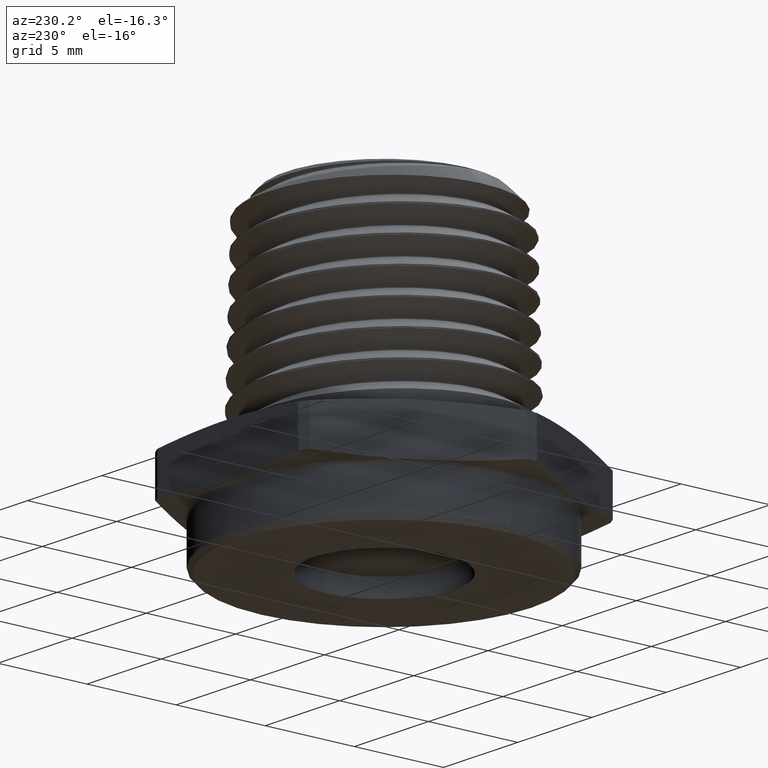
[diagram: clean part render]
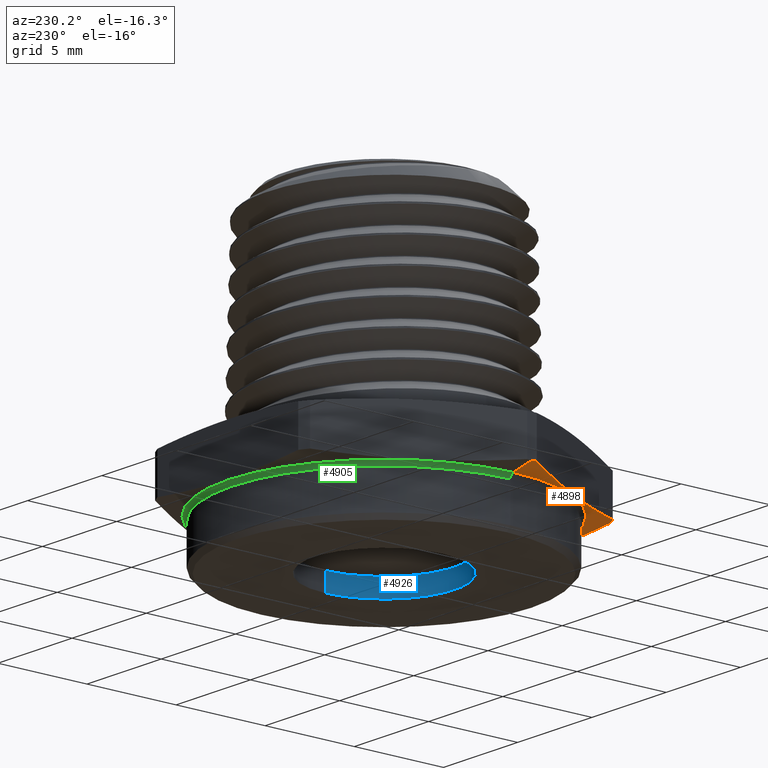
[diagram: same view with three faces highlighted in distinct colors, each labeled with its STEP entity id]
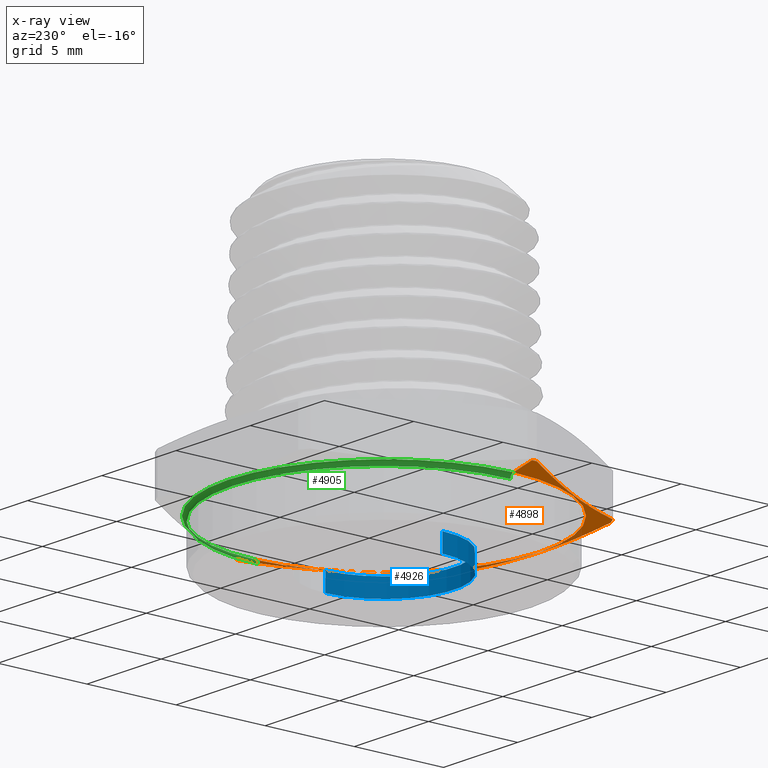
[diagram: x-ray of the same camera — body ghosted, the three highlighted faces saturated]
A machine part, auxiliary view with three faces highlighted in distinct colors.
The next image is the same camera in x-ray (body ghosted, the three faces saturated) — at least one of them is partly hidden behind the body in this view.
Their STEP definitions:

[orange] entity #4898 — the highlighted conical surface has half-angle 78 deg.
#690 = AXIS2_PLACEMENT_3D ( 'NONE', #3116, #3117, #3118 ) ;
#692 = AXIS2_PLACEMENT_3D ( 'NONE', #3128, #3129, #3130 ) ;
#695 = AXIS2_PLACEMENT_3D ( 'NONE', #3147, #3148, #3149 ) ;
#705 = AXIS2_PLACEMENT_3D ( 'NONE', #4397, #4398, #4399 ) ;
#710 = AXIS2_PLACEMENT_3D ( 'NONE', #4419, #4420, #4421 ) ;
#757 = AXIS2_PLACEMENT_3D ( 'NONE', #3494, #3495, #3493 ) ;
#817 = ORIENTED_EDGE ( 'NONE', *, *, #1729, .T. ) ;
#858 = ORIENTED_EDGE ( 'NONE', *, *, #1799, .T. ) ;
#875 = ORIENTED_EDGE ( 'NONE', *, *, #1767, .F. ) ;
#901 = ORIENTED_EDGE ( 'NONE', *, *, #1770, .T. ) ;
#1640 = B_SPLINE_CURVE_WITH_KNOTS ( 'NONE', 3,
 ( #3175, #3169, #3171, #3177, #3178 ),
 .UNSPECIFIED., .F., .F.,
 ( 4, 1, 4 ),
 ( 1.975061656153983600E-006, 0.004749162338215752600, 0.009496349614775351600 ),
 .UNSPECIFIED. ) ;
#1641 = B_SPLINE_CURVE_WITH_KNOTS ( 'NONE', 3,
 ( #3180, #3174, #3176, #3182, #3183, #3184, #3185, #3186 ),
 .UNSPECIFIED., .F., .F.,
 ( 4, 2, 2, 4 ),
 ( 0.008707379266003482600, 0.01109029592398133200, 0.01347321258195918400, 0.01823904589791488400 ),
 .UNSPECIFIED. ) ;
#1642 = B_SPLINE_CURVE_WITH_KNOTS ( 'NONE', 3,
 ( #3187, #3179, #3181, #3188, #3189 ),
 .UNSPECIFIED., .F., .F.,
 ( 4, 1, 4 ),
 ( 1.975061655748048500E-006, 0.004749162338215338900, 0.009496349614774930000 ),
 .UNSPECIFIED. ) ;
#1717 = EDGE_CURVE ( 'NONE', #2507, #2519, #2606, .T. ) ;
#1722 = EDGE_CURVE ( 'NONE', #2539, #2510, #2612, .T. ) ;
#1729 = EDGE_CURVE ( 'NONE', #1827, #2515, #2625, .T. ) ;
#1737 = EDGE_CURVE ( 'NONE', #2539, #2515, #1640, .T. ) ;
#1738 = EDGE_CURVE ( 'NONE', #2507, #2510, #1641, .T. ) ;
#1739 = EDGE_CURVE ( 'NONE', #1847, #2519, #1642, .T. ) ;
#1761 = EDGE_CURVE ( 'NONE', #1847, #1873, #2662, .T. ) ;
#1767 = EDGE_CURVE ( 'NONE', #1855, #1873, #2670, .T. ) ;
#1770 = EDGE_CURVE ( 'NONE', #1855, #1836, #2669, .T. ) ;
#1799 = EDGE_CURVE ( 'NONE', #1836, #1827, #2707, .T. ) ;
#1827 = VERTEX_POINT ( 'NONE', #4506 ) ;
#1836 = VERTEX_POINT ( 'NONE', #4531 ) ;
#1847 = VERTEX_POINT ( 'NONE', #4541 ) ;
#1855 = VERTEX_POINT ( 'NONE', #4549 ) ;
#1873 = VERTEX_POINT ( 'NONE', #4567 ) ;
#2507 = VERTEX_POINT ( 'NONE', #4585 ) ;
#2510 = VERTEX_POINT ( 'NONE', #4588 ) ;
#2515 = VERTEX_POINT ( 'NONE', #4593 ) ;
#2519 = VERTEX_POINT ( 'NONE', #3366 ) ;
#2539 = VERTEX_POINT ( 'NONE', #3385 ) ;
#2606 = CIRCLE ( 'NONE', #690, 0.3923716857408416900 ) ;
#2612 = CIRCLE ( 'NONE', #692, 0.3923716857408416900 ) ;
#2625 = CIRCLE ( 'NONE', #695, 0.3923716857408416900 ) ;
#2662 = CIRCLE ( 'NONE', #705, 0.3923716857408416900 ) ;
#2669 = CIRCLE ( 'NONE', #710, 0.3429208830918226700 ) ;
#2670 = LINE ( 'NONE', #4405, #2671 ) ;
#2671 = VECTOR ( 'NONE', #4407, 39.37007874015748100 ) ;
#2707 = LINE ( 'NONE', #4505, #2709 ) ;
#2709 = VECTOR ( 'NONE', #4501, 39.37007874015748100 ) ;
#3116 = CARTESIAN_POINT ( 'NONE',  ( 1.493423492798156200E-018, 0.0000000000000000000, 0.01219472825828588400 ) ) ;
#3117 = DIRECTION ( 'NONE',  ( -1.224646799147351200E-016, -0.0000000000000000000, -1.000000000000000000 ) ) ;
#3118 = DIRECTION ( 'NONE',  ( -1.000000000000000000, 0.0000000000000000000, 1.251055960969030800E-016 ) ) ;
#3128 = CARTESIAN_POINT ( 'NONE',  ( 1.493423492798156200E-018, 0.0000000000000000000, 0.01219472825828588400 ) ) ;
#3129 = DIRECTION ( 'NONE',  ( -1.224646799147351200E-016, -0.0000000000000000000, -1.000000000000000000 ) ) ;
#3130 = DIRECTION ( 'NONE',  ( -1.000000000000000000, 0.0000000000000000000, 1.251055960969030800E-016 ) ) ;
#3147 = CARTESIAN_POINT ( 'NONE',  ( 1.493423492798156200E-018, 0.0000000000000000000, 0.01219472825828588400 ) ) ;
#3148 = DIRECTION ( 'NONE',  ( -1.224646799147351200E-016, -0.0000000000000000000, -1.000000000000000000 ) ) ;
#3149 = DIRECTION ( 'NONE',  ( -1.000000000000000000, 0.0000000000000000000, 1.251055960969030800E-016 ) ) ;
#3169 = CARTESIAN_POINT ( 'NONE',  ( 0.2364797186814894000, -0.2804051122840648900, 0.005887175410780928900 ) ) ;
#3171 = CARTESIAN_POINT ( 'NONE',  ( 0.2987787643056311600, -0.1724999999999999000, -0.001636044177380915200 ) ) ;
#3174 = CARTESIAN_POINT ( 'NONE',  ( -0.1557582215120213700, -0.3449999999999998100, 0.009042025800615860500 ) ) ;
#3175 = CARTESIAN_POINT ( 'NONE',  ( 0.2053301958694185000, -0.3343576684260973200, 0.01219472825828593400 ) ) ;
#3176 = CARTESIAN_POINT ( 'NONE',  ( -0.1245142246070182200, -0.3449999999999998600, 0.006492246311963062300 ) ) ;
#3177 = CARTESIAN_POINT ( 'NONE',  ( 0.3610778099297729000, -0.06459488771593491200, 0.005887175410780907300 ) ) ;
#3178 = CARTESIAN_POINT ( 'NONE',  ( 0.3922273327418436800, -0.01064233157390236500, 0.01219472825828583600 ) ) ;
#3179 = CARTESIAN_POINT ( 'NONE',  ( -0.3610778099297727300, -0.06459488771593521700, 0.005887175410781002700 ) ) ;
#3180 = CARTESIAN_POINT ( 'NONE',  ( -0.1868971368724250700, -0.3449999999999998100, 0.01219472825828593400 ) ) ;
#3181 = CARTESIAN_POINT ( 'NONE',  ( -0.2987787643056311600, -0.1725000000000000100, -0.001636044177380834100 ) ) ;
#3182 = CARTESIAN_POINT ( 'NONE',  ( -0.06212850595196967700, -0.3449999999999998100, 0.003029762632639263100 ) ) ;
#3183 = CARTESIAN_POINT ( 'NONE',  ( -0.03095414757252229500, -0.3449999999999998100, 0.002121744499833164100 ) ) ;
#3184 = CARTESIAN_POINT ( 'NONE',  ( 0.06250744931464369300, -0.3449999999999998600, 0.002133244712638485800 ) ) ;
#3185 = CARTESIAN_POINT ( 'NONE',  ( 0.1247306861591275900, -0.3449999999999998100, 0.005900600165511630200 ) ) ;
#3186 = CARTESIAN_POINT ( 'NONE',  ( 0.1868971368724250700, -0.3449999999999998100, 0.01219472825828586200 ) ) ;
#3187 = CARTESIAN_POINT ( 'NONE',  ( -0.3922273327418436800, -0.01064233157390284000, 0.01219472825828593400 ) ) ;
#3188 = CARTESIAN_POINT ( 'NONE',  ( -0.2364797186814895600, -0.2804051122840648900, 0.005887175410781007000 ) ) ;
#3189 = CARTESIAN_POINT ( 'NONE',  ( -0.2053301958694187800, -0.3343576684260972100, 0.01219472825828591000 ) ) ;
#3366 = CARTESIAN_POINT ( 'NONE',  ( -0.2053301958694187800, -0.3343576684260972100, 0.01219472825828591000 ) ) ;
#3385 = CARTESIAN_POINT ( 'NONE',  ( 0.2053301958694185000, -0.3343576684260973200, 0.01219472825828593400 ) ) ;
#3493 = DIRECTION ( 'NONE',  ( 1.000000000000000000, 0.0000000000000000000, -1.251055960969030800E-016 ) ) ;
#3494 = CARTESIAN_POINT ( 'NONE',  ( 1.493423492798156200E-018, 0.0000000000000000000, 0.01219472825828588400 ) ) ;
#3495 = DIRECTION ( 'NONE',  ( 1.224646799147351200E-016, 0.0000000000000000000, 1.000000000000000000 ) ) ;
#4397 = CARTESIAN_POINT ( 'NONE',  ( 1.493423492798156200E-018, 0.0000000000000000000, 0.01219472825828588400 ) ) ;
#4398 = DIRECTION ( 'NONE',  ( -1.224646799147351200E-016, -0.0000000000000000000, -1.000000000000000000 ) ) ;
#4399 = DIRECTION ( 'NONE',  ( -1.000000000000000000, 0.0000000000000000000, 1.251055960969030800E-016 ) ) ;
#4405 = CARTESIAN_POINT ( 'NONE',  ( -0.3923716857408416900, 4.805167290185729500E-017, 0.01219472825828593400 ) ) ;
#4407 = DIRECTION ( 'NONE',  ( -0.9781476007338069100, 1.197885328332319900E-016, 0.2079116908177530700 ) ) ;
#4419 = CARTESIAN_POINT ( 'NONE',  ( 3.538065823107614100E-018, 0.0000000000000000000, 0.001683635675387737400 ) ) ;
#4420 = DIRECTION ( 'NONE',  ( 1.224646799147351200E-016, 0.0000000000000000000, 1.000000000000000000 ) ) ;
#4421 = DIRECTION ( 'NONE',  ( 1.000000000000000000, 0.0000000000000000000, -1.221412310369413900E-016 ) ) ;
#4501 = DIRECTION ( 'NONE',  ( 0.9781476007338069100, 0.0000000000000000000, 0.2079116908177528500 ) ) ;
#4505 = CARTESIAN_POINT ( 'NONE',  ( 0.3923716857408416900, 0.0000000000000000000, 0.01219472825828583600 ) ) ;
#4506 = CARTESIAN_POINT ( 'NONE',  ( 0.3923716857408416900, 0.0000000000000000000, 0.01219472825828583600 ) ) ;
#4531 = CARTESIAN_POINT ( 'NONE',  ( 0.3429208830918218400, 0.0000000000000000000, 0.001683635675387694700 ) ) ;
#4541 = CARTESIAN_POINT ( 'NONE',  ( -0.3922273327418436800, -0.01064233157390284000, 0.01219472825828593400 ) ) ;
#4549 = CARTESIAN_POINT ( 'NONE',  ( -0.3429208830918218400, 4.199569618391833300E-017, 0.001683635675387782300 ) ) ;
#4567 = CARTESIAN_POINT ( 'NONE',  ( -0.3923716857408416900, 0.0000000000000000000, 0.01219472825828593400 ) ) ;
#4585 = CARTESIAN_POINT ( 'NONE',  ( -0.1868971368724250700, -0.3449999999999998100, 0.01219472825828593400 ) ) ;
#4588 = CARTESIAN_POINT ( 'NONE',  ( 0.1868971368724250700, -0.3449999999999998100, 0.01219472825828586200 ) ) ;
#4593 = CARTESIAN_POINT ( 'NONE',  ( 0.3922273327418436800, -0.01064233157390236500, 0.01219472825828583600 ) ) ;
#4613 = EDGE_LOOP ( 'NONE', ( #875, #901, #858, #817, #5022, #4942, #4997, #4992, #4958, #4995 ) ) ;
#4898 = ADVANCED_FACE ( 'NONE', ( #5225 ), #5232, .T. ) ;
#4942 = ORIENTED_EDGE ( 'NONE', *, *, #1722, .T. ) ;
#4958 = ORIENTED_EDGE ( 'NONE', *, *, #1739, .F. ) ;
#4992 = ORIENTED_EDGE ( 'NONE', *, *, #1717, .T. ) ;
#4995 = ORIENTED_EDGE ( 'NONE', *, *, #1761, .T. ) ;
#4997 = ORIENTED_EDGE ( 'NONE', *, *, #1738, .F. ) ;
#5022 = ORIENTED_EDGE ( 'NONE', *, *, #1737, .F. ) ;
#5225 = FACE_OUTER_BOUND ( 'NONE', #4613, .T. ) ;
#5232 = CONICAL_SURFACE ( 'NONE', #757, 0.3923716857408416900, 1.361356816555583600 ) ;

[blue] entity #4926 — the highlighted cylindrical surface (partial cylindrical patch) has radius 3.937 mm, axis along (-0, -0, -1).
#718 = AXIS2_PLACEMENT_3D ( 'NONE', #4450, #4451, #4452 ) ;
#720 = AXIS2_PLACEMENT_3D ( 'NONE', #4461, #4462, #4463 ) ;
#805 = AXIS2_PLACEMENT_3D ( 'NONE', #2462, #2463, #2460 ) ;
#1779 = EDGE_CURVE ( 'NONE', #1860, #1841, #2683, .T. ) ;
#1780 = EDGE_CURVE ( 'NONE', #1838, #1841, #2684, .T. ) ;
#1783 = EDGE_CURVE ( 'NONE', #1846, #1838, #2689, .T. ) ;
#1785 = EDGE_CURVE ( 'NONE', #1846, #1860, #2693, .T. ) ;
#1838 = VERTEX_POINT ( 'NONE', #4532 ) ;
#1841 = VERTEX_POINT ( 'NONE', #4535 ) ;
#1846 = VERTEX_POINT ( 'NONE', #4540 ) ;
#1860 = VERTEX_POINT ( 'NONE', #4554 ) ;
#2023 = EDGE_LOOP ( 'NONE', ( #5035, #4935, #4990, #5010 ) ) ;
#2460 = DIRECTION ( 'NONE',  ( -1.000000000000000000, 0.0000000000000000000, 1.101551610348493600E-016 ) ) ;
#2462 = CARTESIAN_POINT ( 'NONE',  ( -3.414809992080329000E-017, 0.0000000000000000000, -0.1000000000000000100 ) ) ;
#2463 = DIRECTION ( 'NONE',  ( -1.224646799147353200E-016, -0.0000000000000000000, -1.000000000000000000 ) ) ;
#2683 = LINE ( 'NONE', #4443, #2685 ) ;
#2684 = CIRCLE ( 'NONE', #718, 0.1549999999999999400 ) ;
#2685 = VECTOR ( 'NONE', #4439, 39.37007874015748100 ) ;
#2689 = LINE ( 'NONE', #4454, #2692 ) ;
#2692 = VECTOR ( 'NONE', #4455, 39.37007874015748100 ) ;
#2693 = CIRCLE ( 'NONE', #720, 0.1549999999999999400 ) ;
#4439 = DIRECTION ( 'NONE',  ( -1.224646799147353200E-016, -0.0000000000000000000, -1.000000000000000000 ) ) ;
#4443 = CARTESIAN_POINT ( 'NONE',  ( -0.1550000000000000000, 0.0000000000000000000, -0.09999999999999999200 ) ) ;
#4450 = CARTESIAN_POINT ( 'NONE',  ( -3.414809992080329000E-017, 0.0000000000000000000, -0.1000000000000000200 ) ) ;
#4451 = DIRECTION ( 'NONE',  ( -1.224646799147353200E-016, -0.0000000000000000000, -1.000000000000000000 ) ) ;
#4452 = DIRECTION ( 'NONE',  ( -1.000000000000000000, 0.0000000000000000000, 1.101551610348493600E-016 ) ) ;
#4454 = CARTESIAN_POINT ( 'NONE',  ( 0.1549999999999999200, 1.898202538678397000E-017, -0.1000000000000000200 ) ) ;
#4455 = DIRECTION ( 'NONE',  ( -1.224646799147353200E-016, -0.0000000000000000000, -1.000000000000000000 ) ) ;
#4461 = CARTESIAN_POINT ( 'NONE',  ( -2.924951272421388200E-017, 0.0000000000000000000, -0.06000000000000003200 ) ) ;
#4462 = DIRECTION ( 'NONE',  ( -1.224646799147353200E-016, -0.0000000000000000000, -1.000000000000000000 ) ) ;
#4463 = DIRECTION ( 'NONE',  ( -1.000000000000000000, 0.0000000000000000000, 1.101551610348493600E-016 ) ) ;
#4532 = CARTESIAN_POINT ( 'NONE',  ( 0.1549999999999999200, 1.898202538678397000E-017, -0.1000000000000000500 ) ) ;
#4535 = CARTESIAN_POINT ( 'NONE',  ( -0.1550000000000000000, 0.0000000000000000000, -0.1000000000000000100 ) ) ;
#4540 = CARTESIAN_POINT ( 'NONE',  ( 0.1549999999999999200, 1.898202538678397000E-017, -0.06000000000000005300 ) ) ;
#4554 = CARTESIAN_POINT ( 'NONE',  ( -0.1550000000000000000, 0.0000000000000000000, -0.06000000000000001900 ) ) ;
#4926 = ADVANCED_FACE ( 'NONE', ( #5279 ), #5285, .F. ) ;
#4935 = ORIENTED_EDGE ( 'NONE', *, *, #1783, .T. ) ;
#4990 = ORIENTED_EDGE ( 'NONE', *, *, #1780, .T. ) ;
#5010 = ORIENTED_EDGE ( 'NONE', *, *, #1779, .F. ) ;
#5035 = ORIENTED_EDGE ( 'NONE', *, *, #1785, .F. ) ;
#5279 = FACE_OUTER_BOUND ( 'NONE', #2023, .T. ) ;
#5285 = CYLINDRICAL_SURFACE ( 'NONE', #805, 0.1549999999999999400 ) ;

[green] entity #4905 — the highlighted toroidal blend (fillet) surface has major radius 8.763 mm and minor (blend) radius 0.254 mm.
#704 = AXIS2_PLACEMENT_3D ( 'NONE', #4392, #4393, #4394 ) ;
#708 = AXIS2_PLACEMENT_3D ( 'NONE', #4413, #4414, #4415 ) ;
#709 = AXIS2_PLACEMENT_3D ( 'NONE', #4416, #4417, #4418 ) ;
#711 = AXIS2_PLACEMENT_3D ( 'NONE', #4422, #4423, #4424 ) ;
#771 = AXIS2_PLACEMENT_3D ( 'NONE', #3518, #3519, #3523 ) ;
#1760 = EDGE_CURVE ( 'NONE', #1837, #1828, #2654, .T. ) ;
#1768 = EDGE_CURVE ( 'NONE', #1836, #1855, #2667, .T. ) ;
#1769 = EDGE_CURVE ( 'NONE', #1837, #1855, #2672, .T. ) ;
#1771 = EDGE_CURVE ( 'NONE', #1828, #1836, #2674, .T. ) ;
#1828 = VERTEX_POINT ( 'NONE', #4525 ) ;
#1836 = VERTEX_POINT ( 'NONE', #4531 ) ;
#1837 = VERTEX_POINT ( 'NONE', #4519 ) ;
#1855 = VERTEX_POINT ( 'NONE', #4549 ) ;
#2036 = EDGE_LOOP ( 'NONE', ( #4986, #5006, #5031, #5021 ) ) ;
#2654 = CIRCLE ( 'NONE', #704, 0.3350000000000000200 ) ;
#2667 = CIRCLE ( 'NONE', #708, 0.3429208830918226700 ) ;
#2672 = CIRCLE ( 'NONE', #709, 0.01000000000000000000 ) ;
#2674 = CIRCLE ( 'NONE', #711, 0.01000000000000003000 ) ;
#3518 = CARTESIAN_POINT ( 'NONE',  ( 2.939123158941460500E-018, 0.0000000000000000000, -0.008097840331950210600 ) ) ;
#3519 = DIRECTION ( 'NONE',  ( -6.123233995736756200E-017, -0.0000000000000000000, -1.000000000000000000 ) ) ;
#3523 = DIRECTION ( 'NONE',  ( -1.000000000000000000, 0.0000000000000000000, 6.123233995736756200E-017 ) ) ;
#4392 = CARTESIAN_POINT ( 'NONE',  ( 0.0000000000000000000, 0.0000000000000000000, -0.008097840331950198500 ) ) ;
#4393 = DIRECTION ( 'NONE',  ( -6.123233995736756200E-017, -0.0000000000000000000, -1.000000000000000000 ) ) ;
#4394 = DIRECTION ( 'NONE',  ( -1.000000000000000000, 0.0000000000000000000, 6.052368456112523200E-017 ) ) ;
#4413 = CARTESIAN_POINT ( 'NONE',  ( 3.538065823107614100E-018, 0.0000000000000000000, 0.001683635675387737400 ) ) ;
#4414 = DIRECTION ( 'NONE',  ( 1.224646799147351200E-016, 0.0000000000000000000, 1.000000000000000000 ) ) ;
#4415 = DIRECTION ( 'NONE',  ( 1.000000000000000000, 0.0000000000000000000, -1.221412310369413900E-016 ) ) ;
#4416 = CARTESIAN_POINT ( 'NONE',  ( -0.3450000000000000800, 0.0000000000000000000, -0.008097840331950189800 ) ) ;
#4417 = DIRECTION ( 'NONE',  ( 0.0000000000000000000, -1.000000000000000000, 0.0000000000000000000 ) ) ;
#4418 = DIRECTION ( 'NONE',  ( 0.0000000000000000000, 0.0000000000000000000, -1.000000000000000000 ) ) ;
#4422 = CARTESIAN_POINT ( 'NONE',  ( 0.3450000000000000800, 4.225031457058369100E-017, -0.008097840331950233200 ) ) ;
#4423 = DIRECTION ( 'NONE',  ( -1.224646799147353200E-016, 1.000000000000000000, 7.498798913309275700E-033 ) ) ;
#4424 = DIRECTION ( 'NONE',  ( -1.000000000000000000, -1.224646799147346800E-016, 0.0000000000000000000 ) ) ;
#4519 = CARTESIAN_POINT ( 'NONE',  ( -0.3350000000000000200, 4.102566777143633400E-017, -0.008097840331950177700 ) ) ;
#4525 = CARTESIAN_POINT ( 'NONE',  ( 0.3350000000000000200, 0.0000000000000000000, -0.008097840331950219300 ) ) ;
#4531 = CARTESIAN_POINT ( 'NONE',  ( 0.3429208830918218400, 0.0000000000000000000, 0.001683635675387694700 ) ) ;
#4549 = CARTESIAN_POINT ( 'NONE',  ( -0.3429208830918218400, 4.199569618391833300E-017, 0.001683635675387782300 ) ) ;
#4905 = ADVANCED_FACE ( 'NONE', ( #5235 ), #5236, .F. ) ;
#4986 = ORIENTED_EDGE ( 'NONE', *, *, #1771, .F. ) ;
#5006 = ORIENTED_EDGE ( 'NONE', *, *, #1760, .F. ) ;
#5021 = ORIENTED_EDGE ( 'NONE', *, *, #1768, .F. ) ;
#5031 = ORIENTED_EDGE ( 'NONE', *, *, #1769, .T. ) ;
#5235 = FACE_OUTER_BOUND ( 'NONE', #2036, .T. ) ;
#5236 = TOROIDAL_SURFACE ( 'NONE', #771, 0.3450000000000000800, 0.01000000000000000000 ) ;